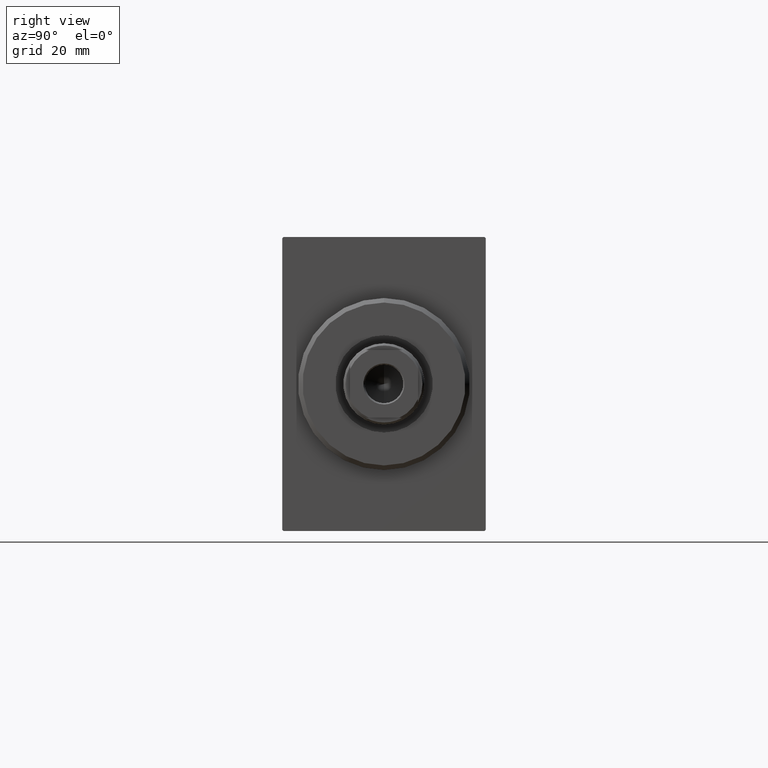
[diagram: clean part render]
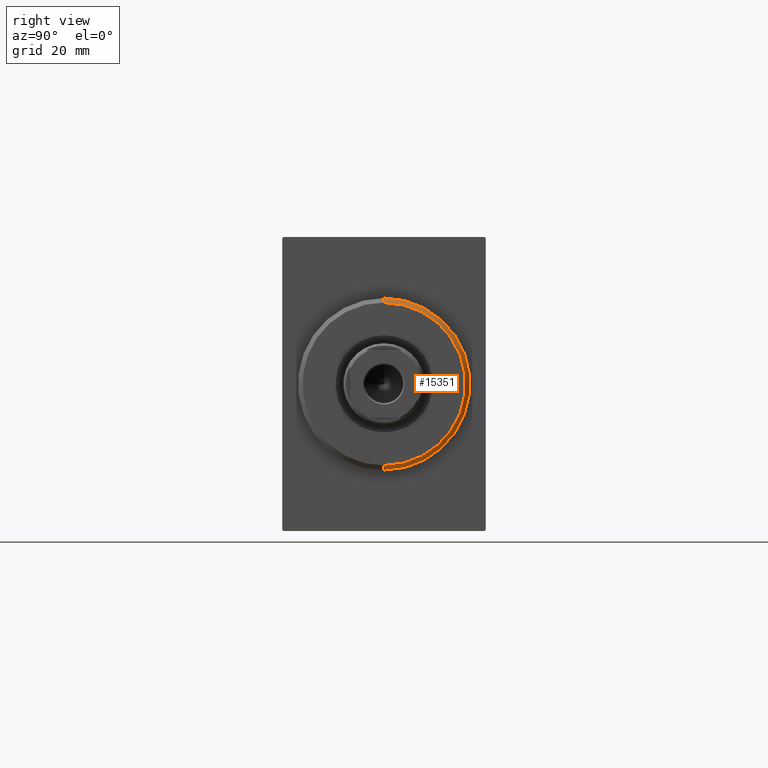
[diagram: same view with one face highlighted and labeled with its STEP entity id]
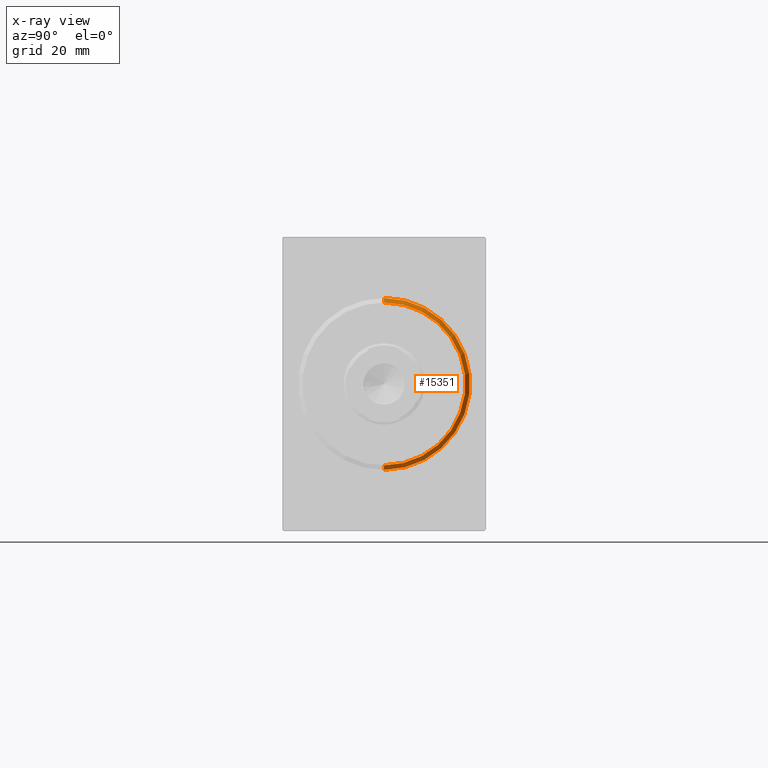
[diagram: x-ray of the same camera — body ghosted, the highlighted face saturated]
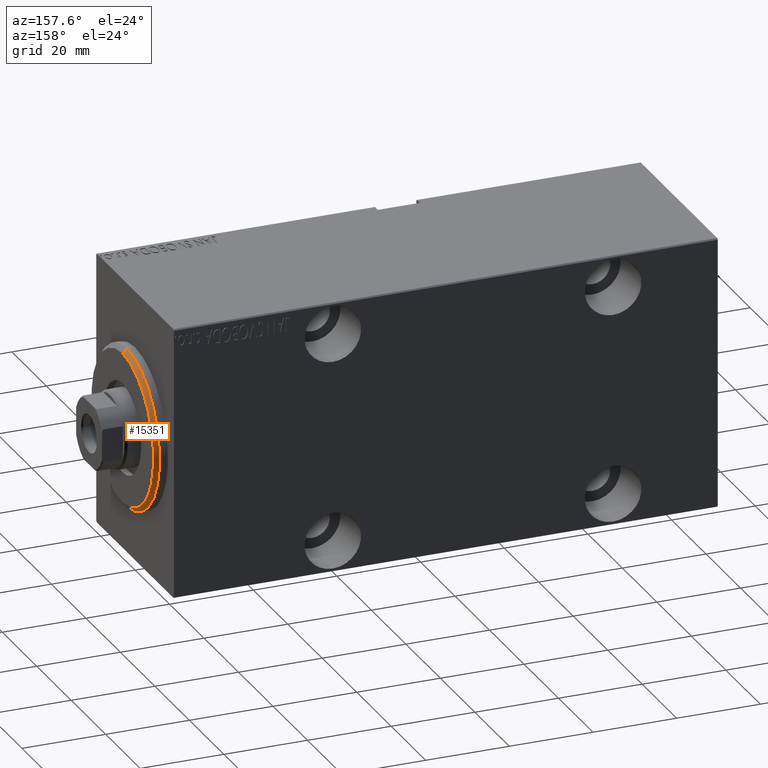
[diagram: same view with one face highlighted and labeled with its STEP entity id]
A machine part, right view. The second image highlights one B-rep face of the part: STEP entity #15351.
The next image is the same camera in x-ray: the body ghosted, the highlighted face saturated — about 0% of this face is hidden behind the body in this view.
A second angle (auxiliary view) of the same face is appended — the face is thin or edge-on in the first view.
In plain terms, the highlighted conical surface has half-angle 45 deg.
Its self-contained STEP definition (entity closure, byte-faithful):
#155 = CARTESIAN_POINT ( 'NONE',  ( 3.000000000000000000, 0.000000000000000000, 17.99999999999999645 ) ) ;
#871 = CARTESIAN_POINT ( 'NONE',  ( 3.000000000000000000, 2.265596578422603002E-15, -17.99999999999999645 ) ) ;
#1665 = ORIENTED_EDGE ( 'NONE', *, *, #25888, .F. ) ;
#2803 = DIRECTION ( 'NONE',  ( -1.000000000000000000, 0.000000000000000000, 0.000000000000000000 ) ) ;
#3249 = FACE_OUTER_BOUND ( 'NONE', #23903, .T. ) ;
#3457 = DIRECTION ( 'NONE',  ( -1.000000000000000000, 0.000000000000000000, 0.000000000000000000 ) ) ;
#4843 = CARTESIAN_POINT ( 'NONE',  ( 3.000000000000000000, 0.000000000000000000, 0.000000000000000000 ) ) ;
#5490 = DIRECTION ( 'NONE',  ( 1.000000000000000000, -0.000000000000000000, 0.000000000000000000 ) ) ;
#6462 = CARTESIAN_POINT ( 'NONE',  ( 3.000000000000000000, 2.204364238465235033E-15, -17.99999999999999645 ) ) ;
#8582 = CARTESIAN_POINT ( 'NONE',  ( 1.999999999999992228, 0.000000000000000000, 19.00000000000000000 ) ) ;
#9362 = VECTOR ( 'NONE', #26826, 1000.000000000000000 ) ;
#9504 = DIRECTION ( 'NONE',  ( -0.7071067811865487940, 8.659560562354918067E-17, -0.7071067811865463515 ) ) ;
#10051 = CONICAL_SURFACE ( 'NONE', #34300, 17.99999999999999645, 0.7853981633974466137 ) ;
#10186 = CARTESIAN_POINT ( 'NONE',  ( 3.000000000000000000, 0.000000000000000000, 0.000000000000000000 ) ) ;
#12237 = VERTEX_POINT ( 'NONE', #25302 ) ;
#14743 = EDGE_CURVE ( 'NONE', #12237, #27011, #36796, .T. ) ;
#14856 = VERTEX_POINT ( 'NONE', #28692 ) ;
#15351 = ADVANCED_FACE ( 'NONE', ( #3249 ), #10051, .T. ) ;
#15735 = AXIS2_PLACEMENT_3D ( 'NONE', #4843, #5490, #31527 ) ;
#16210 = LINE ( 'NONE', #6462, #30723 ) ;
#16395 = ORIENTED_EDGE ( 'NONE', *, *, #14743, .F. ) ;
#19696 = ORIENTED_EDGE ( 'NONE', *, *, #33141, .T. ) ;
#22770 = CARTESIAN_POINT ( 'NONE',  ( 1.999999999999992228, 0.000000000000000000, 0.000000000000000000 ) ) ;
#23903 = EDGE_LOOP ( 'NONE', ( #1665, #19696, #24995, #16395 ) ) ;
#24995 = ORIENTED_EDGE ( 'NONE', *, *, #37104, .F. ) ;
#25302 = CARTESIAN_POINT ( 'NONE',  ( 3.000000000000000000, 0.000000000000000000, 17.99999999999999645 ) ) ;
#25888 = EDGE_CURVE ( 'NONE', #35086, #12237, #33760, .T. ) ;
#26019 = DIRECTION ( 'NONE',  ( 0.000000000000000000, 0.000000000000000000, -1.000000000000000000 ) ) ;
#26826 = DIRECTION ( 'NONE',  ( -0.7071067811865487940, 0.000000000000000000, 0.7071067811865463515 ) ) ;
#27011 = VERTEX_POINT ( 'NONE', #8582 ) ;
#28692 = CARTESIAN_POINT ( 'NONE',  ( 1.999999999999992228, 2.326828918379970970E-15, -19.00000000000000000 ) ) ;
#30723 = VECTOR ( 'NONE', #9504, 1000.000000000000000 ) ;
#31527 = DIRECTION ( 'NONE',  ( 0.000000000000000000, 0.000000000000000000, -1.000000000000000000 ) ) ;
#33141 = EDGE_CURVE ( 'NONE', #35086, #14856, #16210, .T. ) ;
#33760 = CIRCLE ( 'NONE', #15735, 17.99999999999999645 ) ;
#34296 = CIRCLE ( 'NONE', #39835, 19.00000000000000000 ) ;
#34300 = AXIS2_PLACEMENT_3D ( 'NONE', #10186, #3457, #37065 ) ;
#35086 = VERTEX_POINT ( 'NONE', #871 ) ;
#36796 = LINE ( 'NONE', #155, #9362 ) ;
#37065 = DIRECTION ( 'NONE',  ( 0.000000000000000000, 0.000000000000000000, 1.000000000000000000 ) ) ;
#37104 = EDGE_CURVE ( 'NONE', #27011, #14856, #34296, .T. ) ;
#39835 = AXIS2_PLACEMENT_3D ( 'NONE', #22770, #2803, #26019 ) ;